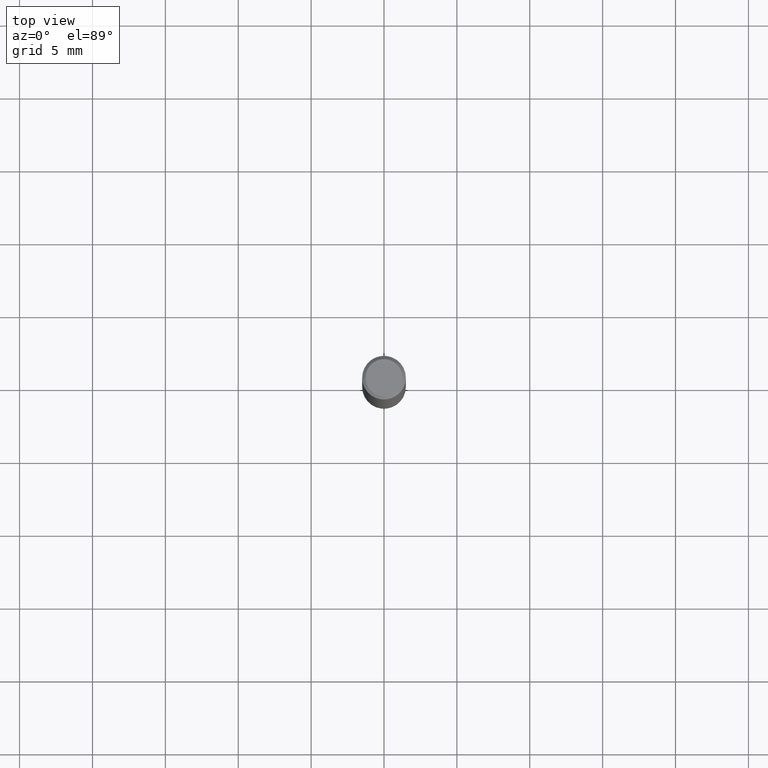
[diagram: clean part render]
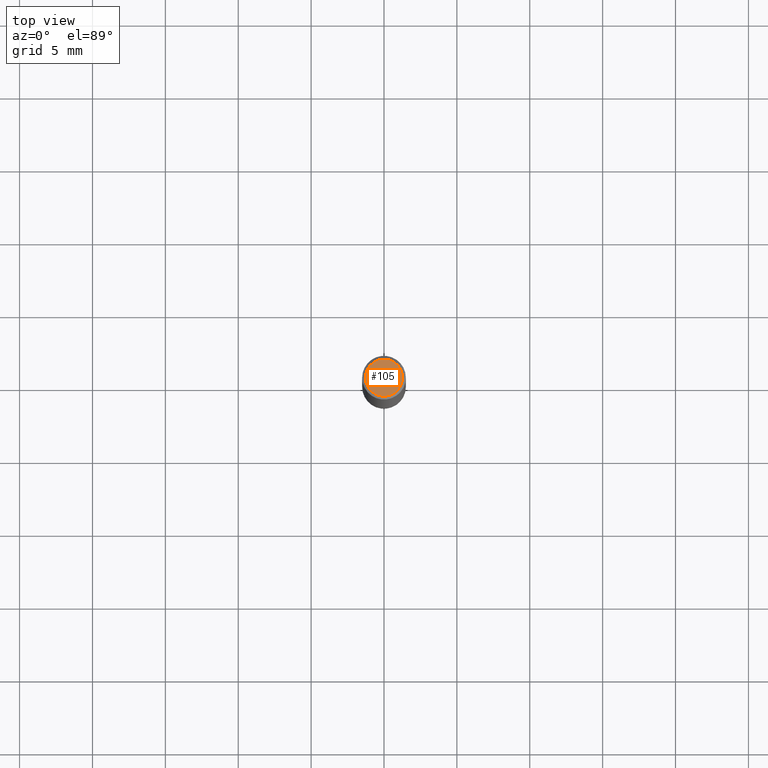
[diagram: same view with one face highlighted and labeled with its STEP entity id]
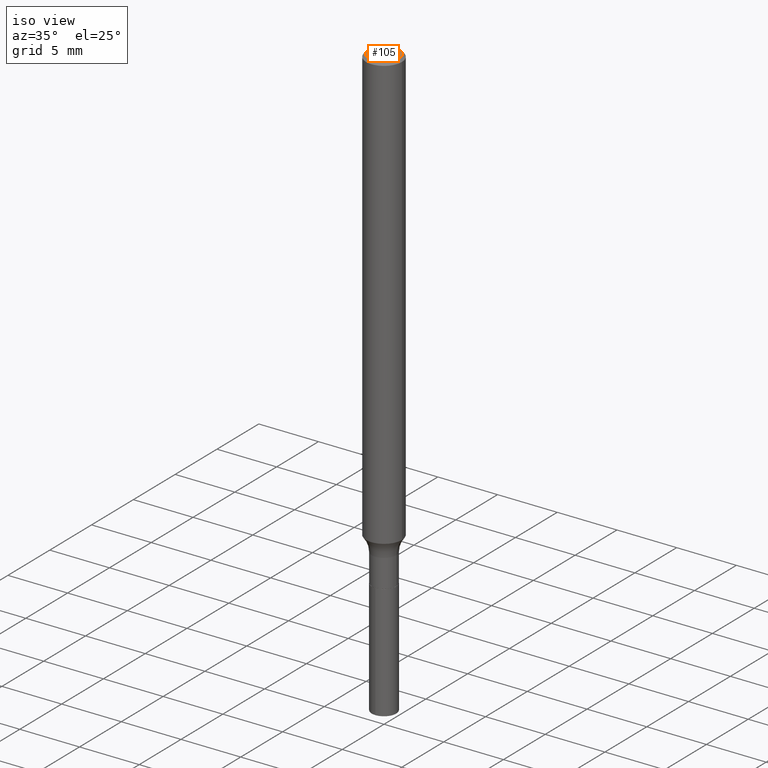
[diagram: same view with one face highlighted and labeled with its STEP entity id]
A machine part, top view. The second image highlights one B-rep face of the part: STEP entity #105.
A second angle (iso view) of the same face is appended — the face is thin or edge-on in the first view.
In plain terms, the highlighted planar face has unit normal (0, -0, -1).
Its self-contained STEP definition (entity closure, byte-faithful):
#1 = ORIENTED_EDGE ( 'NONE', *, *, #76, .T. ) ;
#12 = VERTEX_POINT ( 'NONE', #326 ) ;
#25 = PLANE ( 'NONE',  #92 ) ;
#63 = EDGE_LOOP ( 'NONE', ( #193, #1 ) ) ;
#72 = DIRECTION ( 'NONE',  ( 2.438088387897960049E-29, -3.491481338843145188E-15, -1.000000000000000000 ) ) ;
#76 = EDGE_CURVE ( 'NONE', #12, #313, #484, .T. ) ;
#92 = AXIS2_PLACEMENT_3D ( 'NONE', #146, #72, #221 ) ;
#95 = CARTESIAN_POINT ( 'NONE',  ( -0.05019250000000000100, 3.659552521791693345E-16, -3.591276738524661214E-19 ) ) ;
#105 = ADVANCED_FACE ( 'NONE', ( #371 ), #25, .F. ) ;
#107 = EDGE_CURVE ( 'NONE', #313, #12, #441, .T. ) ;
#108 = DIRECTION ( 'NONE',  ( 1.000000000000000000, -6.982962677686266711E-15, 4.876140833081945105E-29 ) ) ;
#118 = DIRECTION ( 'NONE',  ( -2.445468806185136597E-29, 3.491481338843145583E-15, 1.000000000000000000 ) ) ;
#143 = AXIS2_PLACEMENT_3D ( 'NONE', #444, #289, #108 ) ;
#146 = CARTESIAN_POINT ( 'NONE',  ( 4.391177619189545165E-48, -6.269437857546430492E-34, -1.795638369249804840E-19 ) ) ;
#193 = ORIENTED_EDGE ( 'NONE', *, *, #107, .T. ) ;
#196 = AXIS2_PLACEMENT_3D ( 'NONE', #375, #118, #312 ) ;
#221 = DIRECTION ( 'NONE',  ( -1.000000000000000000, 6.982962677686265922E-15, -4.876176775795935793E-29 ) ) ;
#289 = DIRECTION ( 'NONE',  ( -2.445468806185136597E-29, 3.491481338843145583E-15, 1.000000000000000000 ) ) ;
#312 = DIRECTION ( 'NONE',  ( 1.000000000000000000, -6.982962677686266711E-15, 4.876140833081945105E-29 ) ) ;
#313 = VERTEX_POINT ( 'NONE', #95 ) ;
#326 = CARTESIAN_POINT ( 'NONE',  ( 0.05019250000000000100, -3.901918742401799672E-16, -3.591276738473711219E-19 ) ) ;
#371 = FACE_OUTER_BOUND ( 'NONE', #63, .T. ) ;
#375 = CARTESIAN_POINT ( 'NONE',  ( 8.782355238379090331E-48, -1.253887571509286098E-33, -3.591276738499609681E-19 ) ) ;
#441 = CIRCLE ( 'NONE', #196, 0.05019250000000000100 ) ;
#444 = CARTESIAN_POINT ( 'NONE',  ( 8.782355238379090331E-48, -1.253887571509286098E-33, -3.591276738499609681E-19 ) ) ;
#484 = CIRCLE ( 'NONE', #143, 0.05019250000000000100 ) ;